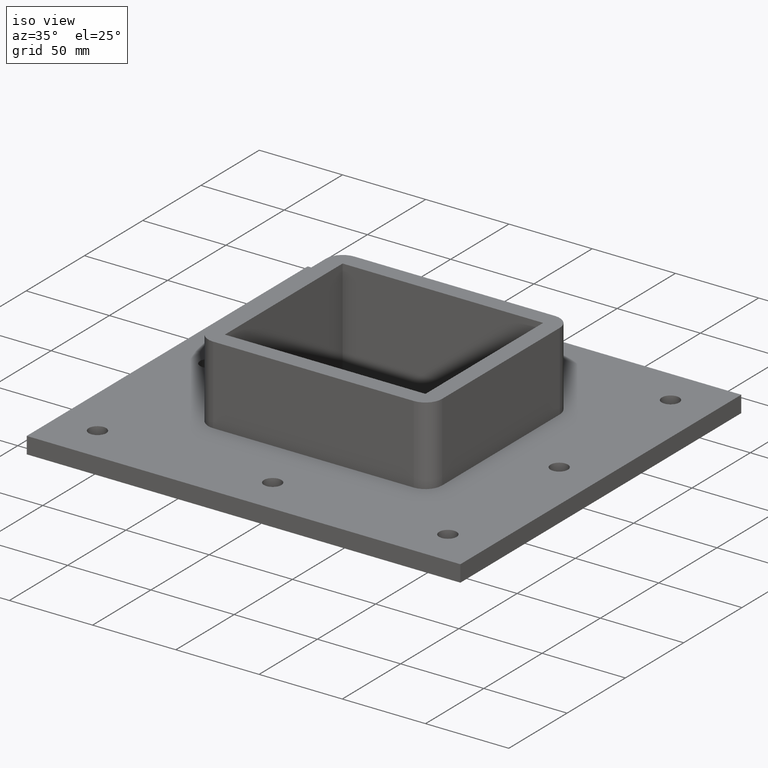
[diagram: clean part render]
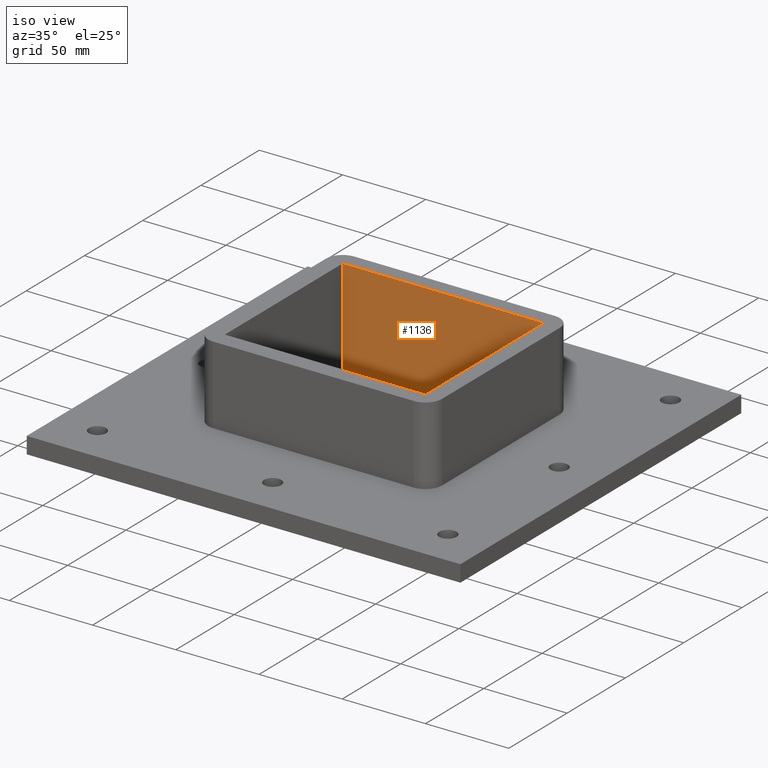
[diagram: same view with one face highlighted and labeled with its STEP entity id]
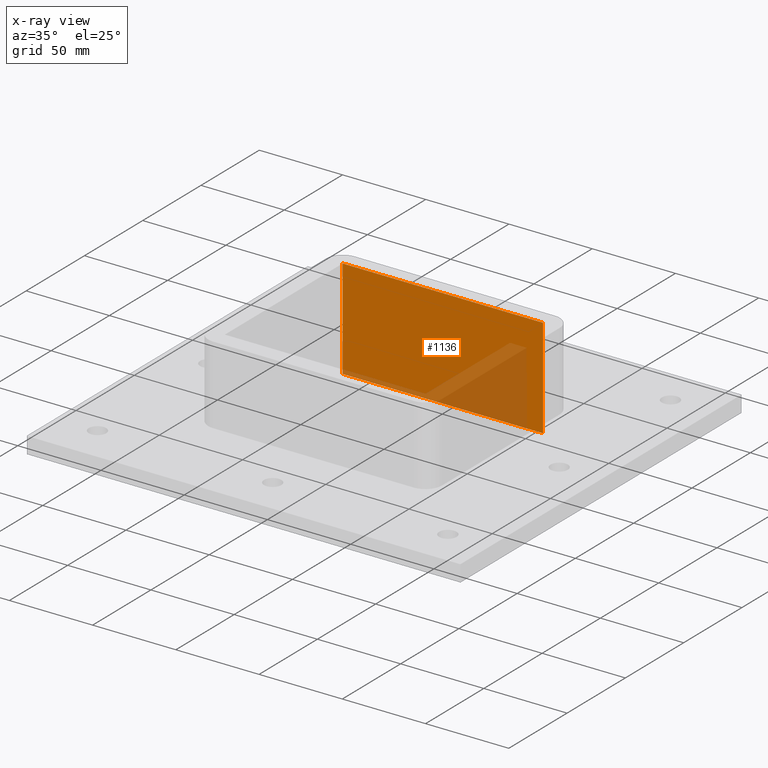
[diagram: x-ray of the same camera — body ghosted, the highlighted face saturated]
A machine part, iso view. The second image highlights one B-rep face of the part: STEP entity #1136.
The next image is the same camera in x-ray: the body ghosted, the highlighted face saturated — about 24% of this face is hidden behind the body in this view.
In plain terms, the highlighted planar face has unit normal (0, 1, 0).
Its self-contained STEP definition (entity closure, byte-faithful):
#900=CARTESIAN_POINT('',(60.250000000000014,50.500000000000043,-30.0));
#901=VERTEX_POINT('',#900);
#908=CARTESIAN_POINT('',(-60.250000000000014,50.500000000000028,-30.0));
#909=VERTEX_POINT('',#908);
#910=CARTESIAN_POINT('',(60.250000000000007,50.500000000000043,-30.0));
#911=DIRECTION('',(-1.0,0.0,0.0));
#912=VECTOR('',#911,120.50000000000003);
#913=LINE('',#910,#912);
#914=EDGE_CURVE('',#901,#909,#913,.T.);
#1047=CARTESIAN_POINT('',(-60.250000000000014,50.500000000000028,30.0));
#1048=VERTEX_POINT('',#1047);
#1049=CARTESIAN_POINT('',(-60.250000000000014,50.500000000000028,30.0));
#1050=DIRECTION('',(0.0,0.0,-1.0));
#1051=VECTOR('',#1050,60.0);
#1052=LINE('',#1049,#1051);
#1053=EDGE_CURVE('',#1048,#909,#1052,.T.);
#1103=CARTESIAN_POINT('',(60.250000000000014,50.500000000000043,30.0));
#1104=VERTEX_POINT('',#1103);
#1111=CARTESIAN_POINT('',(60.250000000000014,50.500000000000043,30.0));
#1112=DIRECTION('',(0.0,0.0,-1.0));
#1113=VECTOR('',#1112,60.0);
#1114=LINE('',#1111,#1113);
#1115=EDGE_CURVE('',#1104,#901,#1114,.T.);
#1120=CARTESIAN_POINT('',(-60.250000000000014,50.500000000000028,30.0));
#1121=DIRECTION('',(0.0,1.0,0.0));
#1122=DIRECTION('',(1.0,0.0,0.0));
#1123=AXIS2_PLACEMENT_3D('',#1120,#1121,#1122);
#1124=PLANE('',#1123);
#1125=ORIENTED_EDGE('',*,*,#914,.F.);
#1126=ORIENTED_EDGE('',*,*,#1115,.F.);
#1127=CARTESIAN_POINT('',(-60.250000000000014,50.500000000000021,30.0));
#1128=DIRECTION('',(1.0,0.0,0.0));
#1129=VECTOR('',#1128,120.50000000000003);
#1130=LINE('',#1127,#1129);
#1131=EDGE_CURVE('',#1048,#1104,#1130,.T.);
#1132=ORIENTED_EDGE('',*,*,#1131,.F.);
#1133=ORIENTED_EDGE('',*,*,#1053,.T.);
#1134=EDGE_LOOP('',(#1125,#1126,#1132,#1133));
#1135=FACE_OUTER_BOUND('',#1134,.T.);
#1136=ADVANCED_FACE('',(#1135),#1124,.F.);